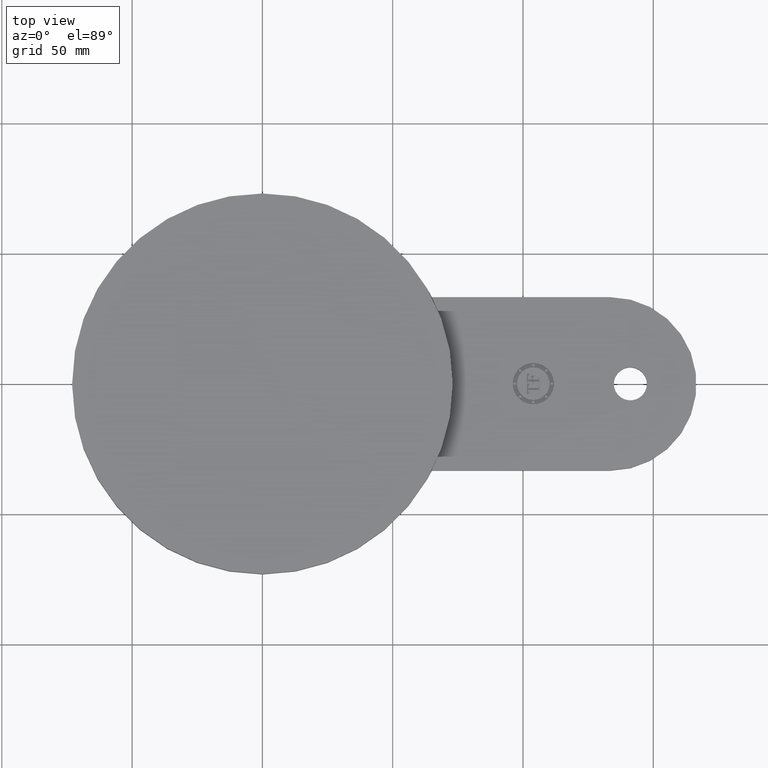
[diagram: clean part render]
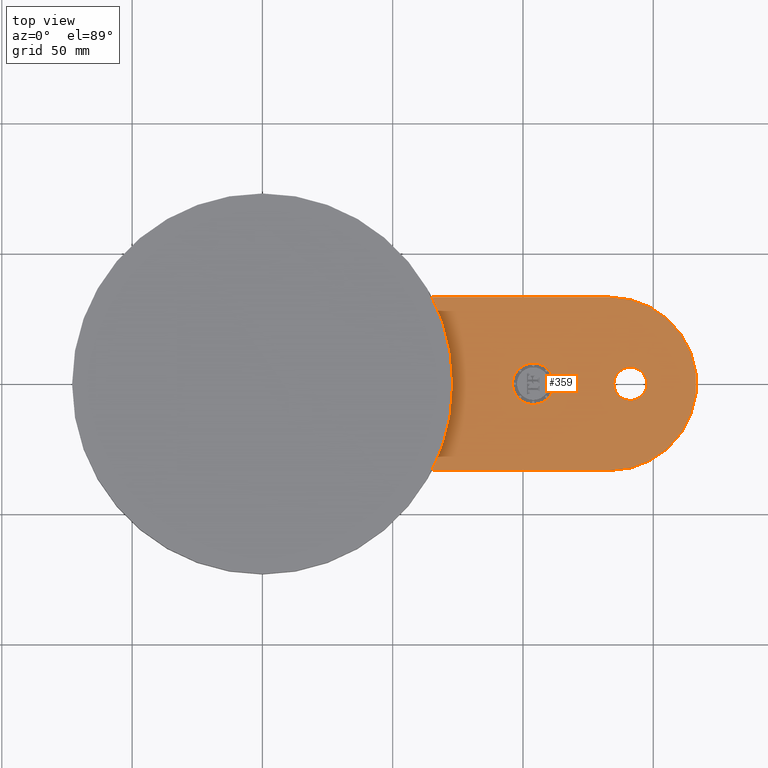
[diagram: same view with one face highlighted and labeled with its STEP entity id]
A machine part, top view. The second image highlights one B-rep face of the part: STEP entity #359.
In plain terms, the highlighted planar face has unit normal (0, 0, 1).
Its self-contained STEP definition (entity closure, byte-faithful):
#146=AXIS2_PLACEMENT_3D('Circle Axis2P3D',#144,#145,$) ;
#187=AXIS2_PLACEMENT_3D('Circle Axis2P3D',#185,#186,$) ;
#213=AXIS2_PLACEMENT_3D('Circle Axis2P3D',#211,#212,$) ;
#280=AXIS2_PLACEMENT_3D('Circle Axis2P3D',#278,#279,$) ;
#301=AXIS2_PLACEMENT_3D('Circle Axis2P3D',#299,#300,$) ;
#328=AXIS2_PLACEMENT_3D('Plane Axis2P3D',#325,#326,#327) ;
#343=AXIS2_PLACEMENT_3D('Circle Axis2P3D',#341,#342,$) ;
#352=AXIS2_PLACEMENT_3D('Circle Axis2P3D',#350,#351,$) ;
#46=CARTESIAN_POINT('Vertex',(2.55920397781,-1.31000000001,0.187500000001)) ;
#60=CARTESIAN_POINT('Vertex',(5.24920397782,-1.31000000001,0.187500000001)) ;
#63=CARTESIAN_POINT('Line Origine',(3.90420397782,-1.31000000001,0.187500000001)) ;
#141=CARTESIAN_POINT('Vertex',(5.24920397782,1.31000000001,0.187500000001)) ;
#144=CARTESIAN_POINT('Axis2P3D Location',(5.24920397782,0.,0.187500000001)) ;
#165=CARTESIAN_POINT('Vertex',(2.55920397781,1.31000000001,0.187500000001)) ;
#168=CARTESIAN_POINT('Line Origine',(3.90420397782,1.31000000001,0.187500000001)) ;
#185=CARTESIAN_POINT('Axis2P3D Location',(5.55920397782,0.,0.187500000001)) ;
#189=CARTESIAN_POINT('Vertex',(5.30920397782,3.06161699788E-017,0.187500000001)) ;
#191=CARTESIAN_POINT('Vertex',(5.80920397783,0.,0.187500000001)) ;
#211=CARTESIAN_POINT('Axis2P3D Location',(5.55920397782,0.,0.187500000001)) ;
#275=CARTESIAN_POINT('Vertex',(2.87500000001,0.,0.187500000001)) ;
#278=CARTESIAN_POINT('Axis2P3D Location',(0.,0.,0.187500000001)) ;
#299=CARTESIAN_POINT('Axis2P3D Location',(0.,0.,0.187500000001)) ;
#325=CARTESIAN_POINT('Axis2P3D Location',(0.,0.,0.187500000001)) ;
#341=CARTESIAN_POINT('Axis2P3D Location',(4.09210198892,0.,0.187500000001)) ;
#345=CARTESIAN_POINT('Vertex',(4.09210198892,0.312499996876,0.187500000001)) ;
#347=CARTESIAN_POINT('Vertex',(4.09210198892,-0.312499996876,0.187500000001)) ;
#350=CARTESIAN_POINT('Axis2P3D Location',(4.09210198892,0.,0.187500000001)) ;
#64=DIRECTION('Vector Direction',(0.0393700787402,0.,0.)) ;
#145=DIRECTION('Axis2P3D Direction',(0.,0.,0.0393700787402)) ;
#169=DIRECTION('Vector Direction',(-0.0393700787402,0.,0.)) ;
#186=DIRECTION('Axis2P3D Direction',(0.,0.,0.0393700787402)) ;
#212=DIRECTION('Axis2P3D Direction',(0.,0.,0.0393700787402)) ;
#279=DIRECTION('Axis2P3D Direction',(0.,0.,0.0393700787402)) ;
#300=DIRECTION('Axis2P3D Direction',(0.,0.,0.0393700787402)) ;
#326=DIRECTION('Axis2P3D Direction',(0.,0.,0.0393700787402)) ;
#327=DIRECTION('Axis2P3D XDirection',(0.0393700787402,0.,0.)) ;
#342=DIRECTION('Axis2P3D Direction',(0.,0.,0.0393700787402)) ;
#351=DIRECTION('Axis2P3D Direction',(0.,0.,0.0393700787402)) ;
#65=VECTOR('Line Direction',#64,0.0393700787402) ;
#170=VECTOR('Line Direction',#169,0.0393700787402) ;
#331=ORIENTED_EDGE('',*,*,#67,.T.) ;
#332=ORIENTED_EDGE('',*,*,#148,.T.) ;
#333=ORIENTED_EDGE('',*,*,#172,.T.) ;
#334=ORIENTED_EDGE('',*,*,#282,.F.) ;
#335=ORIENTED_EDGE('',*,*,#303,.F.) ;
#338=ORIENTED_EDGE('',*,*,#193,.F.) ;
#339=ORIENTED_EDGE('',*,*,#215,.F.) ;
#356=ORIENTED_EDGE('',*,*,#349,.F.) ;
#357=ORIENTED_EDGE('',*,*,#354,.F.) ;
#340=FACE_BOUND('',#337,.T.) ;
#358=FACE_BOUND('',#355,.T.) ;
#359=ADVANCED_FACE('PartBody',(#336,#340,#358),#329,.T.) ;
#147=CIRCLE('generated circle',#146,1.31000000001) ;
#188=CIRCLE('generated circle',#187,0.250000000001) ;
#214=CIRCLE('generated circle',#213,0.250000000001) ;
#281=CIRCLE('generated circle',#280,2.87500000001) ;
#302=CIRCLE('generated circle',#301,2.87500000001) ;
#344=CIRCLE('generated circle',#343,0.312499996876) ;
#353=CIRCLE('generated circle',#352,0.312499996876) ;
#67=EDGE_CURVE('',#47,#61,#66,.T.) ;
#148=EDGE_CURVE('',#61,#142,#147,.T.) ;
#172=EDGE_CURVE('',#142,#166,#171,.T.) ;
#193=EDGE_CURVE('',#190,#192,#188,.T.) ;
#215=EDGE_CURVE('',#192,#190,#214,.T.) ;
#282=EDGE_CURVE('',#276,#166,#281,.T.) ;
#303=EDGE_CURVE('',#47,#276,#302,.T.) ;
#349=EDGE_CURVE('',#346,#348,#344,.T.) ;
#354=EDGE_CURVE('',#348,#346,#353,.T.) ;
#330=EDGE_LOOP('',(#331,#332,#333,#334,#335)) ;
#337=EDGE_LOOP('',(#338,#339)) ;
#355=EDGE_LOOP('',(#356,#357)) ;
#336=FACE_OUTER_BOUND('',#330,.T.) ;
#66=LINE('Line',#63,#65) ;
#171=LINE('Line',#168,#170) ;
#329=PLANE('',#328) ;
#47=VERTEX_POINT('',#46) ;
#61=VERTEX_POINT('',#60) ;
#142=VERTEX_POINT('',#141) ;
#166=VERTEX_POINT('',#165) ;
#190=VERTEX_POINT('',#189) ;
#192=VERTEX_POINT('',#191) ;
#276=VERTEX_POINT('',#275) ;
#346=VERTEX_POINT('',#345) ;
#348=VERTEX_POINT('',#347) ;